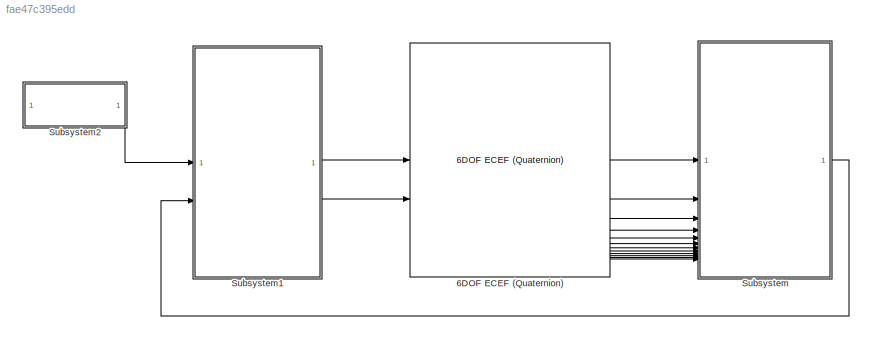
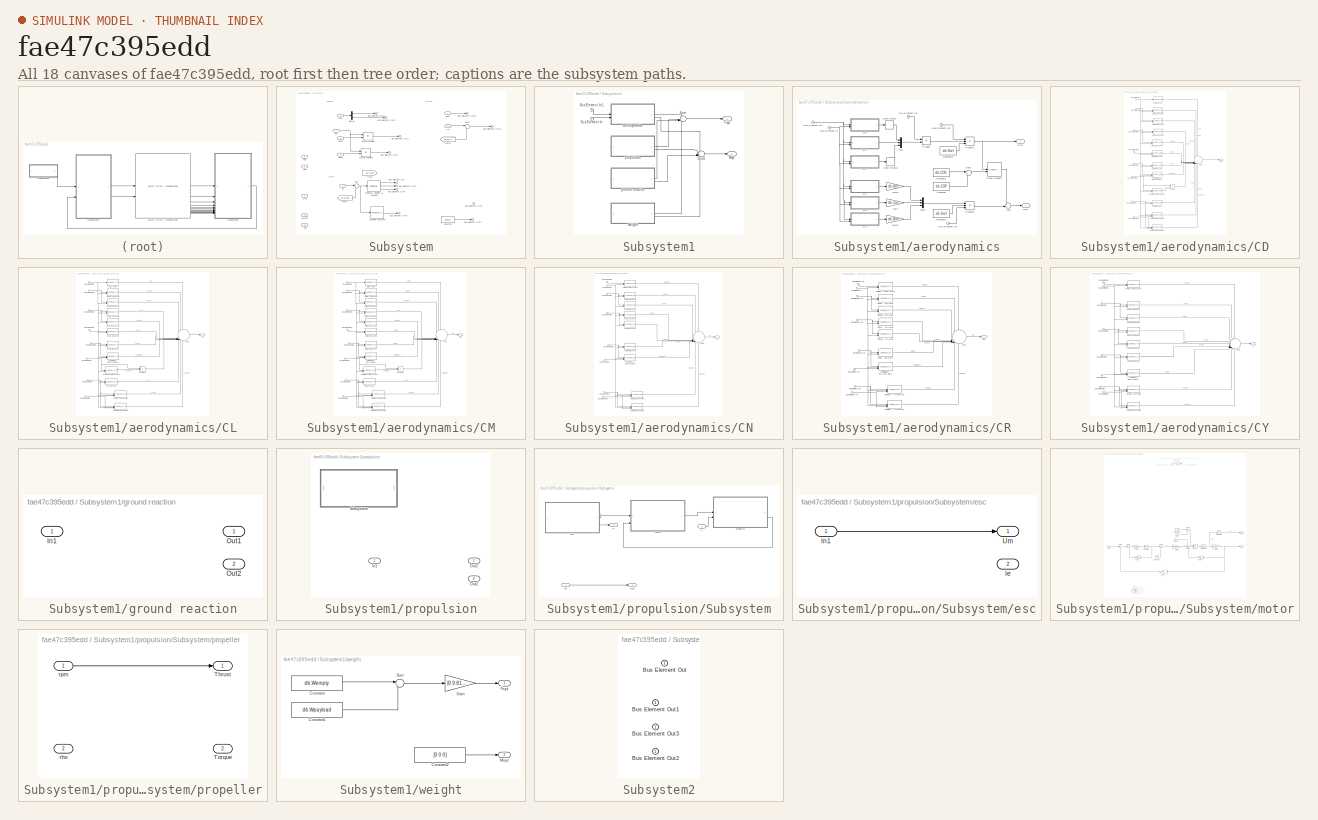
[diagram: thumbnail index - all 18 canvases of the model, root first then tree order]
MODEL slx_fae47c395edd
KIND model
CONFIG AbsTol = auto
CONFIG EnableMultiTasking = off
CONFIG FixedStep = auto
CONFIG InitFcn = L400_init
CONFIG MaxStep = auto
CONFIG MinStep = auto
CONFIG RelTol = 1e-3
CONFIG SampleTimeConstraint = Unconstrained
CONFIG SolverName = VariableStepAuto
CONFIG StartTime = 0.0
CONFIG StopTime = 10.0
BLOCK [Reference] 6DOF ECEF (Quaternion)  REF=aerolib6dof2/6DOF ECEF (Quaternion)
  SourceBlock = aerolib6dof2/6DOF ECEF (Quaternion)
  SourceType = 6DOF EoM (ECEF)
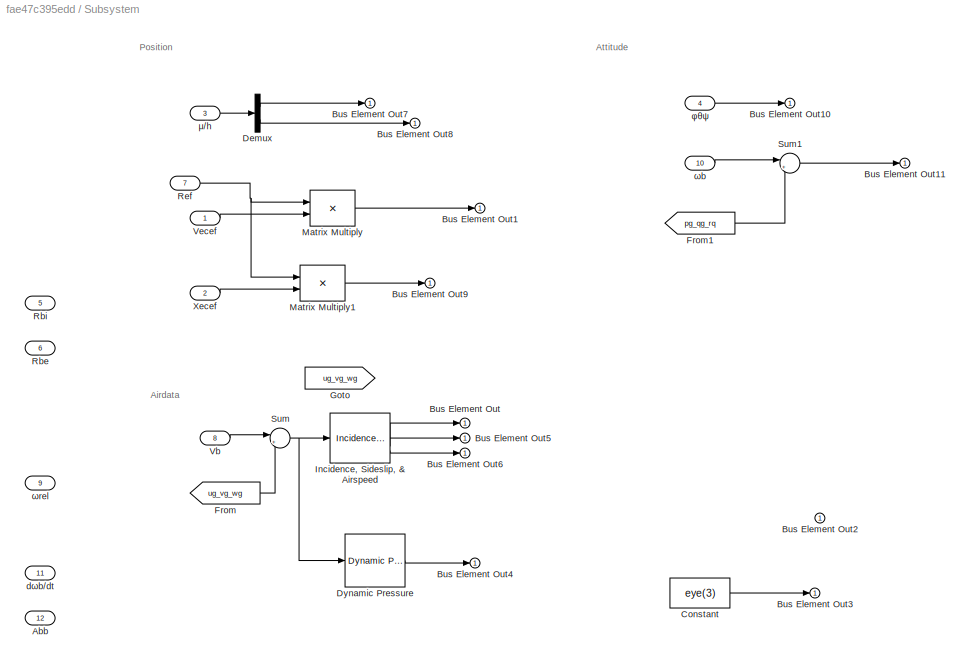
BLOCK [SubSystem] Subsystem
BLOCK [Inport] Subsystem/Abb
  Port = 12
BLOCK [Outport] Subsystem/Bus Element Out
BLOCK [Outport] Subsystem/Bus Element Out1
BLOCK [Outport] Subsystem/Bus Element Out10
BLOCK [Outport] Subsystem/Bus Element Out11
BLOCK [Outport] Subsystem/Bus Element Out2
BLOCK [Outport] Subsystem/Bus Element Out3
BLOCK [Outport] Subsystem/Bus Element Out4
BLOCK [Outport] Subsystem/Bus Element Out5
BLOCK [Outport] Subsystem/Bus Element Out6
BLOCK [Outport] Subsystem/Bus Element Out7
BLOCK [Outport] Subsystem/Bus Element Out8
BLOCK [Outport] Subsystem/Bus Element Out9
BLOCK [Constant] Subsystem/Constant
  Value = eye(3)
BLOCK [Demux] Subsystem/Demux
  Outputs = [2 1]
BLOCK [Reference] Subsystem/Dynamic Pressure  REF=aerolibasang/Dynamic Pressure
  SourceBlock = aerolibasang/Dynamic Pressure
  SourceType = Dynamic Pressure
BLOCK [From] Subsystem/From
  GotoTag = ug_vg_wg
BLOCK [From] Subsystem/From1
  GotoTag = pg_qg_rq
BLOCK [Goto] Subsystem/Goto
  GotoTag = ug_vg_wg
BLOCK [Reference] Subsystem/Incidence, Sideslip, & Airspeed  REF=aerolibasang/Incidence, Sideslip,
& Airspeed
  SourceBlock = aerolibasang/Incidence, Sideslip,\n& Airspeed
  SourceType = Incidence,Sideslip,&Airspeed
BLOCK [Product] Subsystem/Matrix Multiply
  Multiplication = Matrix(*)
BLOCK [Product] Subsystem/Matrix Multiply1
  Multiplication = Matrix(*)
BLOCK [Inport] Subsystem/Rbe
  Port = 6
BLOCK [Inport] Subsystem/Rbi
  Port = 5
BLOCK [Inport] Subsystem/Ref
  Port = 7
BLOCK [Sum] Subsystem/Sum
  Inputs = |+-
BLOCK [Sum] Subsystem/Sum1
  Inputs = |++
BLOCK [Inport] Subsystem/Vb
  Port = 8
BLOCK [Inport] Subsystem/Vecef
BLOCK [Inport] Subsystem/Xecef
  Port = 2
BLOCK [Inport] Subsystem/dωb//dt
  Port = 11
BLOCK [Inport] Subsystem/μ//h
  Port = 3
BLOCK [Inport] Subsystem/φθψ
  Port = 4
BLOCK [Inport] Subsystem/ωb
  Port = 10
BLOCK [Inport] Subsystem/ωrel
  Port = 9
BLOCK [SubSystem] Subsystem1
BLOCK [Inport] Subsystem1/Bus Element In
  Port = 2
BLOCK [Inport] Subsystem1/Bus Element In1
BLOCK [Outport] Subsystem1/Fxyz
BLOCK [Outport] Subsystem1/Mxyz
  Port = 2
BLOCK [Sum] Subsystem1/Sum
  Inputs = 4
BLOCK [Sum] Subsystem1/Sum1
  Inputs = 4
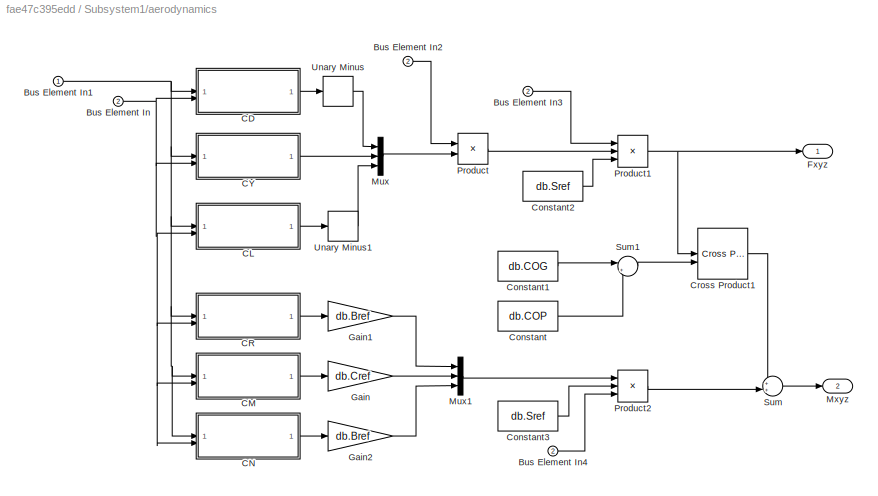
BLOCK [SubSystem] Subsystem1/aerodynamics
BLOCK [Inport] Subsystem1/aerodynamics/Bus Element In
  Port = 2
BLOCK [Inport] Subsystem1/aerodynamics/Bus Element In1
BLOCK [Inport] Subsystem1/aerodynamics/Bus Element In2
  Port = 2
BLOCK [Inport] Subsystem1/aerodynamics/Bus Element In3
  Port = 2
BLOCK [Inport] Subsystem1/aerodynamics/Bus Element In4
  Port = 2
BLOCK [SubSystem] Subsystem1/aerodynamics/CD
BLOCK [Inport] Subsystem1/aerodynamics/CD/Bus Element In
BLOCK [Inport] Subsystem1/aerodynamics/CD/Bus Element In1
  Port = 2
BLOCK [Inport] Subsystem1/aerodynamics/CD/Bus Element In2
BLOCK [Inport] Subsystem1/aerodynamics/CD/Bus Element In3
BLOCK [Inport] Subsystem1/aerodynamics/CD/Bus Element In4
BLOCK [Inport] Subsystem1/aerodynamics/CD/Bus Element In5
  Port = 2
BLOCK [Inport] Subsystem1/aerodynamics/CD/Bus Element In6
  Port = 2
BLOCK [Inport] Subsystem1/aerodynamics/CD/Bus Element In7
BLOCK [Outport] Subsystem1/aerodynamics/CD/CD
BLOCK [Lookup_n-D] Subsystem1/aerodynamics/CD/CDB - ALPHA
  BreakpointsForDimension1 = db.VALPHA
  InputPortMap = u0
  InternalRulePriority = Speed
  NumberOfTableDimensions = 1
  RndMeth = Simplest
  Table = db.CDB
BLOCK [Lookup_n-D] Subsystem1/aerodynamics/CD/CDDAL - DA,ALPHA
  BreakpointsForDimension1 = db.VDA
  BreakpointsForDimension2 = db.VALPHA
  InputPortMap = u0,u1
  InternalRulePriority = Speed
  RndMeth = Simplest
  Table = db.CDDAL
BLOCK [Lookup_n-D] Subsystem1/aerodynamics/CD/CDDAR - DA,ALPHA
  BreakpointsForDimension1 = db.VDA
  BreakpointsForDimension2 = db.VALPHA
  InputPortMap = u0,u1
  InternalRulePriority = Speed
  RndMeth = Simplest
  Table = db.CDDAR
BLOCK [Lookup_n-D] Subsystem1/aerodynamics/CD/CDDE - DE,ALPHA
  BreakpointsForDimension1 = db.VDE
  BreakpointsForDimension2 = db.VALPHA
  InputPortMap = u0,u1
  InternalRulePriority = Speed
  RndMeth = Simplest
  Table = db.CDDE
BLOCK [Lookup_n-D] Subsystem1/aerodynamics/CD/CDDFL - DF,ALPHA
  BreakpointsForDimension1 = db.VDF
  BreakpointsForDimension2 = db.VALPHA
  InputPortMap = u0,u1
  InternalRulePriority = Speed
  RndMeth = Simplest
  Table = db.CDDFL
BLOCK [Lookup_n-D] Subsystem1/aerodynamics/CD/CDDFR - DF,ALPHA
  BreakpointsForDimension1 = db.VDF
  BreakpointsForDimension2 = db.VALPHA
  InputPortMap = u0,u1
  InternalRulePriority = Speed
  RndMeth = Simplest
  Table = db.CDDFR
BLOCK [Lookup_n-D] Subsystem1/aerodynamics/CD/CDDR - DR,ALPHA
  BreakpointsForDimension1 = db.VDR
  BreakpointsForDimension2 = db.VALPHA
  InputPortMap = u0,u1
  InternalRulePriority = Speed
  RndMeth = Simplest
  Table = db.CDDR
BLOCK [Lookup_n-D] Subsystem1/aerodynamics/CD/CDDRBETA - DR,ALPHA,BETA
  BreakpointsForDimension1 = db.VDR
  BreakpointsForDimension2 = db.VALPHA
  BreakpointsForDimension3 = db.VBETA
  InputPortMap = u0,u1,u2
  InternalRulePriority = Speed
  NumberOfTableDimensions = 3
  RndMeth = Simplest
  Table = db.CDDRBETA
BLOCK [Lookup_n-D] Subsystem1/aerodynamics/CD/CDH - H,ALPHA
  BreakpointsForDimension1 = db.VH
  BreakpointsForDimension2 = db.VALPHA
  InputPortMap = u0,u1
  InternalRulePriority = Speed
  RndMeth = Simplest
  Table = db.CDH
BLOCK [Lookup_n-D] Subsystem1/aerodynamics/CD/CDHDFL - H,ALPHA,DF
  BreakpointsForDimension1 = db.VH
  BreakpointsForDimension2 = db.VALPHA
  BreakpointsForDimension3 = db.VDF
  InputPortMap = u0,u1,u2
  InternalRulePriority = Speed
  NumberOfTableDimensions = 3
  RndMeth = Simplest
  Table = db.CDHDFL
BLOCK [Lookup_n-D] Subsystem1/aerodynamics/CD/CDHDFR - H,ALPHA,DF
  BreakpointsForDimension1 = db.VH
  BreakpointsForDimension2 = db.VALPHA
  BreakpointsForDimension3 = db.VDF
  InputPortMap = u0,u1,u2
  InternalRulePriority = Speed
  NumberOfTableDimensions = 3
  RndMeth = Simplest
  Table = db.CDHDFR
BLOCK [Lookup_n-D] Subsystem1/aerodynamics/CD/DCDBETA - BETA,ALPHA
  BreakpointsForDimension1 = db.VBETA
  BreakpointsForDimension2 = db.VALPHA
  InputPortMap = u0,u1
  InternalRulePriority = Speed
  RndMeth = Simplest
  Table = db.DCDBETA
BLOCK [Product] Subsystem1/aerodynamics/CD/Product
BLOCK [Sum] Subsystem1/aerodynamics/CD/Sum
  Inputs = 12
BLOCK [SubSystem] Subsystem1/aerodynamics/CL
BLOCK [Inport] Subsystem1/aerodynamics/CL/BusElementIn
  Port = 2
BLOCK [Inport] Subsystem1/aerodynamics/CL/BusElementIn1
  Port = 2
BLOCK [Inport] Subsystem1/aerodynamics/CL/BusElementIn2
BLOCK [Inport] Subsystem1/aerodynamics/CL/BusElementIn3
BLOCK [Inport] Subsystem1/aerodynamics/CL/BusElementIn4
BLOCK [Inport] Subsystem1/aerodynamics/CL/BusElementIn5
BLOCK [Inport] Subsystem1/aerodynamics/CL/BusElementIn6
  Port = 2
BLOCK [Inport] Subsystem1/aerodynamics/CL/BusElementIn7
BLOCK [Outport] Subsystem1/aerodynamics/CL/CL
BLOCK [Lookup_n-D] Subsystem1/aerodynamics/CL/CLB - ALPHA
  BreakpointsForDimension1 = db.VALPHA
  InputPortMap = u0
  InternalRulePriority = Speed
  NumberOfTableDimensions = 1
  RndMeth = Simplest
  Table = db.CLB
BLOCK [Lookup_n-D] Subsystem1/aerodynamics/CL/CLDAL - DA,ALPHA
  BreakpointsForDimension1 = db.VDA
  BreakpointsForDimension2 = db.VALPHA
  InputPortMap = u0,u1
  InternalRulePriority = Speed
  RndMeth = Simplest
  Table = db.CLDAL
BLOCK [Lookup_n-D] Subsystem1/aerodynamics/CL/CLDAR - DA,ALPHA
  BreakpointsForDimension1 = db.VDA
  BreakpointsForDimension2 = db.VALPHA
  InputPortMap = u0,u1
  InternalRulePriority = Speed
  RndMeth = Simplest
  Table = db.CLDAR
BLOCK [Lookup_n-D] Subsystem1/aerodynamics/CL/CLDE - DE,ALPHA
  BreakpointsForDimension1 = db.VDE
  BreakpointsForDimension2 = db.VALPHA
  InputPortMap = u0,u1
  InternalRulePriority = Speed
  RndMeth = Simplest
  Table = db.CLDE
BLOCK [Lookup_n-D] Subsystem1/aerodynamics/CL/CLDFL - DF,ALPHA
  BreakpointsForDimension1 = db.VDF
  BreakpointsForDimension2 = db.VALPHA
  InputPortMap = u0,u1
  InternalRulePriority = Speed
  RndMeth = Simplest
  Table = db.CLDFL
BLOCK [Lookup_n-D] Subsystem1/aerodynamics/CL/CLDFR - DF,ALPHA
  BreakpointsForDimension1 = db.VDF
  BreakpointsForDimension2 = db.VALPHA
  InputPortMap = u0,u1
  InternalRulePriority = Speed
  RndMeth = Simplest
  Table = db.CLDFR
BLOCK [Lookup_n-D] Subsystem1/aerodynamics/CL/CLDR - DR,ALPHA
  BreakpointsForDimension1 = db.VDR
  BreakpointsForDimension2 = db.VALPHA
  InputPortMap = u0,u1
  InternalRulePriority = Speed
  RndMeth = Simplest
  Table = db.CLDR
BLOCK [Lookup_n-D] Subsystem1/aerodynamics/CL/CLDRBETA - DR,ALPHA,BETA
  BreakpointsForDimension1 = db.VDR
  BreakpointsForDimension2 = db.VALPHA
  BreakpointsForDimension3 = db.VBETA
  InputPortMap = u0,u1,u2
  InternalRulePriority = Speed
  NumberOfTableDimensions = 3
  RndMeth = Simplest
  Table = db.CLDRBETA
BLOCK [Lookup_n-D] Subsystem1/aerodynamics/CL/CLH - H,ALPHA
  BreakpointsForDimension1 = db.VH
  BreakpointsForDimension2 = db.VALPHA
  BreakpointsForDimension3 = db.VBETA
  InputPortMap = u0,u1
  InternalRulePriority = Speed
  RndMeth = Simplest
  Table = db.CLH
BLOCK [Lookup_n-D] Subsystem1/aerodynamics/CL/CLHDFL - H,ALPHA,DF
  BreakpointsForDimension1 = db.VH
  BreakpointsForDimension2 = db.VALPHA
  BreakpointsForDimension3 = db.VDF
  InputPortMap = u0,u1,u2
  InternalRulePriority = Speed
  NumberOfTableDimensions = 3
  RndMeth = Simplest
  Table = db.CLHDFL
BLOCK [Lookup_n-D] Subsystem1/aerodynamics/CL/CLHDFR - H,ALPHA,DF
  BreakpointsForDimension1 = db.VH
  BreakpointsForDimension2 = db.VALPHA
  BreakpointsForDimension3 = db.VDF
  InputPortMap = u0,u1,u2
  InternalRulePriority = Speed
  NumberOfTableDimensions = 3
  RndMeth = Simplest
  Table = db.CLHDFL
BLOCK [Lookup_n-D] Subsystem1/aerodynamics/CL/DCLBETA - BETA,ALPHA
  BreakpointsForDimension1 = db.VBETA
  BreakpointsForDimension2 = db.VALPHA
  BreakpointsForDimension3 = db.VBETA
  InputPortMap = u0,u1
  InternalRulePriority = Speed
  RndMeth = Simplest
  Table = db.DCLBETA
BLOCK [Product] Subsystem1/aerodynamics/CL/Product
BLOCK [Sum] Subsystem1/aerodynamics/CL/Sum
  Inputs = 12
BLOCK [SubSystem] Subsystem1/aerodynamics/CM
BLOCK [Inport] Subsystem1/aerodynamics/CM/BusElementIn
  Port = 2
BLOCK [Inport] Subsystem1/aerodynamics/CM/BusElementIn1
  Port = 2
BLOCK [Inport] Subsystem1/aerodynamics/CM/BusElementIn2
BLOCK [Inport] Subsystem1/aerodynamics/CM/BusElementIn3
BLOCK [Inport] Subsystem1/aerodynamics/CM/BusElementIn4
BLOCK [Inport] Subsystem1/aerodynamics/CM/BusElementIn5
BLOCK [Inport] Subsystem1/aerodynamics/CM/BusElementIn6
  Port = 2
BLOCK [Inport] Subsystem1/aerodynamics/CM/BusElementIn7
BLOCK [Outport] Subsystem1/aerodynamics/CM/CM
BLOCK [Lookup_n-D] Subsystem1/aerodynamics/CM/CMB - ALPHA
  BreakpointsForDimension1 = db.VALPHA
  InputPortMap = u0
  InternalRulePriority = Speed
  NumberOfTableDimensions = 1
  RndMeth = Simplest
  Table = db.CMB
BLOCK [Lookup_n-D] Subsystem1/aerodynamics/CM/CMDAL - DA,ALPHA
  BreakpointsForDimension1 = db.VDA
  BreakpointsForDimension2 = db.VALPHA
  InputPortMap = u0,u1
  InternalRulePriority = Speed
  RndMeth = Simplest
  Table = db.CMDAL
BLOCK [Lookup_n-D] Subsystem1/aerodynamics/CM/CMDAR - DA,ALPHA
  BreakpointsForDimension1 = db.VDA
  BreakpointsForDimension2 = db.VALPHA
  InputPortMap = u0,u1
  InternalRulePriority = Speed
  RndMeth = Simplest
  Table = db.CMDAR
BLOCK [Lookup_n-D] Subsystem1/aerodynamics/CM/CMDE - DE,ALPHA
  BreakpointsForDimension1 = db.VDE
  BreakpointsForDimension2 = db.VALPHA
  InputPortMap = u0,u1
  InternalRulePriority = Speed
  RndMeth = Simplest
  Table = db.CMDE
BLOCK [Lookup_n-D] Subsystem1/aerodynamics/CM/CMDFL - DF,ALPHA
  BreakpointsForDimension1 = db.VDF
  BreakpointsForDimension2 = db.VALPHA
  InputPortMap = u0,u1
  InternalRulePriority = Speed
  RndMeth = Simplest
  Table = db.CMDFL
BLOCK [Lookup_n-D] Subsystem1/aerodynamics/CM/CMDFR - DF,ALPHA
  BreakpointsForDimension1 = db.VDF
  BreakpointsForDimension2 = db.VALPHA
  InputPortMap = u0,u1
  InternalRulePriority = Speed
  RndMeth = Simplest
  Table = db.CMDFR
BLOCK [Lookup_n-D] Subsystem1/aerodynamics/CM/CMDR - DR,ALPHA
  BreakpointsForDimension1 = db.VDR
  BreakpointsForDimension2 = db.VALPHA
  InputPortMap = u0,u1
  InternalRulePriority = Speed
  RndMeth = Simplest
  Table = db.CMDR
BLOCK [Lookup_n-D] Subsystem1/aerodynamics/CM/CMDRBETA - DR,ALPHA,BETA
  BreakpointsForDimension1 = db.VDR
  BreakpointsForDimension2 = db.VALPHA
  BreakpointsForDimension3 = db.VBETA
  InputPortMap = u0,u1,u2
  InternalRulePriority = Speed
  NumberOfTableDimensions = 3
  RndMeth = Simplest
  Table = db.CMDRBETA
BLOCK [Lookup_n-D] Subsystem1/aerodynamics/CM/CMH - H,ALPHA
  BreakpointsForDimension1 = db.VH
  BreakpointsForDimension2 = db.VALPHA
  BreakpointsForDimension3 = db.VBETA
  InputPortMap = u0,u1
  InternalRulePriority = Speed
  RndMeth = Simplest
  Table = db.CMH
BLOCK [Lookup_n-D] Subsystem1/aerodynamics/CM/CMHDFL - H,ALPHA,DF
  BreakpointsForDimension1 = db.VH
  BreakpointsForDimension2 = db.VALPHA
  BreakpointsForDimension3 = db.VDF
  InputPortMap = u0,u1,u2
  InternalRulePriority = Speed
  NumberOfTableDimensions = 3
  RndMeth = Simplest
  Table = db.CMHDFL
BLOCK [Lookup_n-D] Subsystem1/aerodynamics/CM/CMHDFR - H,ALPHA,DF
  BreakpointsForDimension1 = db.VH
  BreakpointsForDimension2 = db.VALPHA
  BreakpointsForDimension3 = db.VDF
  InputPortMap = u0,u1,u2
  InternalRulePriority = Speed
  NumberOfTableDimensions = 3
  RndMeth = Simplest
  Table = db.CMHDFR
BLOCK [Lookup_n-D] Subsystem1/aerodynamics/CM/DCMBETA - BETA,ALPHA
  BreakpointsForDimension1 = db.VBETA
  BreakpointsForDimension2 = db.VALPHA
  BreakpointsForDimension3 = db.VBETA
  InputPortMap = u0,u1
  InternalRulePriority = Speed
  RndMeth = Simplest
  Table = db.DCMBETA
BLOCK [Product] Subsystem1/aerodynamics/CM/Product
BLOCK [Sum] Subsystem1/aerodynamics/CM/Sum
  Inputs = 12
BLOCK [SubSystem] Subsystem1/aerodynamics/CN
BLOCK [Inport] Subsystem1/aerodynamics/CN/BusElementIn
  Port = 2
BLOCK [Inport] Subsystem1/aerodynamics/CN/BusElementIn1
  Port = 2
BLOCK [Inport] Subsystem1/aerodynamics/CN/BusElementIn2
BLOCK [Inport] Subsystem1/aerodynamics/CN/BusElementIn3
BLOCK [Inport] Subsystem1/aerodynamics/CN/BusElementIn5
BLOCK [Inport] Subsystem1/aerodynamics/CN/BusElementIn6
  Port = 2
BLOCK [Inport] Subsystem1/aerodynamics/CN/BusElementIn7
BLOCK [Inport] Subsystem1/aerodynamics/CN/BusElementIn8
  Port = 2
BLOCK [Outport] Subsystem1/aerodynamics/CN/CN
BLOCK [Lookup_n-D] Subsystem1/aerodynamics/CN/CNBETA - BETA,ALPHA
  BreakpointsForDimension1 = db.VBETA
  BreakpointsForDimension2 = db.VALPHA
  InputPortMap = u0,u1
  InternalRulePriority = Speed
  RndMeth = Simplest
  Table = db.CNBETA
BLOCK [Lookup_n-D] Subsystem1/aerodynamics/CN/CNDAL - DA,ALPHA
  BreakpointsForDimension1 = db.VDA
  BreakpointsForDimension2 = db.VALPHA
  InputPortMap = u0,u1
  InternalRulePriority = Speed
  RndMeth = Simplest
  Table = db.CNDAL
BLOCK [Lookup_n-D] Subsystem1/aerodynamics/CN/CNDAR - DA,ALPHA
  BreakpointsForDimension1 = db.VDA
  BreakpointsForDimension2 = db.VALPHA
  InputPortMap = u0,u1
  InternalRulePriority = Speed
  RndMeth = Simplest
  Table = db.CNDAR
BLOCK [Lookup_n-D] Subsystem1/aerodynamics/CN/CNDFL - DF,ALPHA
  BreakpointsForDimension1 = db.VDF
  BreakpointsForDimension2 = db.VALPHA
  InputPortMap = u0,u1
  InternalRulePriority = Speed
  RndMeth = Simplest
  Table = db.CNDFL
BLOCK [Lookup_n-D] Subsystem1/aerodynamics/CN/CNDFR - DF,ALPHA
  BreakpointsForDimension1 = db.VDF
  BreakpointsForDimension2 = db.VALPHA
  InputPortMap = u0,u1
  InternalRulePriority = Speed
  RndMeth = Simplest
  Table = db.CNDFR
BLOCK [Lookup_n-D] Subsystem1/aerodynamics/CN/CNDR - DR,ALPHA
  BreakpointsForDimension1 = db.VDR
  BreakpointsForDimension2 = db.VALPHA
  InputPortMap = u0,u1
  InternalRulePriority = Speed
  RndMeth = Simplest
  Table = db.CNDR
BLOCK [Lookup_n-D] Subsystem1/aerodynamics/CN/CNDRBETA - DR,ALPHA,BETA
  BreakpointsForDimension1 = db.VDR
  BreakpointsForDimension2 = db.VALPHA
  BreakpointsForDimension3 = db.VBETA
  InputPortMap = u0,u1,u2
  InternalRulePriority = Speed
  NumberOfTableDimensions = 3
  RndMeth = Simplest
  Table = db.CNDRBETA
BLOCK [Lookup_n-D] Subsystem1/aerodynamics/CN/CNHDFL - H,ALPHA,DF
  BreakpointsForDimension1 = db.VH
  BreakpointsForDimension2 = db.VALPHA
  BreakpointsForDimension3 = db.VDF
  InputPortMap = u0,u1,u2
  InternalRulePriority = Speed
  NumberOfTableDimensions = 3
  RndMeth = Simplest
  Table = db.CNHDFL
BLOCK [Lookup_n-D] Subsystem1/aerodynamics/CN/CNHDFR - H,ALPHA,DF
  BreakpointsForDimension1 = db.VH
  BreakpointsForDimension2 = db.VALPHA
  BreakpointsForDimension3 = db.VDF
  InputPortMap = u0,u1,u2
  InternalRulePriority = Speed
  NumberOfTableDimensions = 3
  RndMeth = Simplest
  Table = db.CNHDFR
BLOCK [Sum] Subsystem1/aerodynamics/CN/Sum
  Inputs = 9
BLOCK [SubSystem] Subsystem1/aerodynamics/CR
BLOCK [Inport] Subsystem1/aerodynamics/CR/BusElementIn
  Port = 2
BLOCK [Inport] Subsystem1/aerodynamics/CR/BusElementIn1
  Port = 2
BLOCK [Inport] Subsystem1/aerodynamics/CR/BusElementIn2
BLOCK [Inport] Subsystem1/aerodynamics/CR/BusElementIn3
BLOCK [Inport] Subsystem1/aerodynamics/CR/BusElementIn5
BLOCK [Inport] Subsystem1/aerodynamics/CR/BusElementIn6
  Port = 2
BLOCK [Inport] Subsystem1/aerodynamics/CR/BusElementIn7
BLOCK [Inport] Subsystem1/aerodynamics/CR/BusElementIn8
  Port = 2
BLOCK [Outport] Subsystem1/aerodynamics/CR/CR
BLOCK [Lookup_n-D] Subsystem1/aerodynamics/CR/CRBETA - BETA,ALPHA
  BreakpointsForDimension1 = db.VBETA
  BreakpointsForDimension2 = db.VALPHA
  InputPortMap = u0,u1
  InternalRulePriority = Speed
  RndMeth = Simplest
  Table = db.CRBETA
BLOCK [Lookup_n-D] Subsystem1/aerodynamics/CR/CRDAL - DA,ALPHA
  BreakpointsForDimension1 = db.VDA
  BreakpointsForDimension2 = db.VALPHA
  InputPortMap = u0,u1
  InternalRulePriority = Speed
  RndMeth = Simplest
  Table = db.CRDAL
BLOCK [Lookup_n-D] Subsystem1/aerodynamics/CR/CRDAR - DA,ALPHA
  BreakpointsForDimension1 = db.VDA
  BreakpointsForDimension2 = db.VALPHA
  InputPortMap = u0,u1
  InternalRulePriority = Speed
  RndMeth = Simplest
  Table = db.CRDAR
BLOCK [Lookup_n-D] Subsystem1/aerodynamics/CR/CRDFL - DF,ALPHA
  BreakpointsForDimension1 = db.VDF
  BreakpointsForDimension2 = db.VALPHA
  InputPortMap = u0,u1
  InternalRulePriority = Speed
  RndMeth = Simplest
  Table = db.CRDFL
BLOCK [Lookup_n-D] Subsystem1/aerodynamics/CR/CRDFR - DF,ALPHA
  BreakpointsForDimension1 = db.VDF
  BreakpointsForDimension2 = db.VALPHA
  InputPortMap = u0,u1
  InternalRulePriority = Speed
  RndMeth = Simplest
  Table = db.CRDFR
BLOCK [Lookup_n-D] Subsystem1/aerodynamics/CR/CRDR - DR,ALPHA
  BreakpointsForDimension1 = db.VDR
  BreakpointsForDimension2 = db.VALPHA
  InputPortMap = u0,u1
  InternalRulePriority = Speed
  RndMeth = Simplest
  Table = db.CRDR
BLOCK [Lookup_n-D] Subsystem1/aerodynamics/CR/CRDRBETA - DR,ALPHA,BETA
  BreakpointsForDimension1 = db.VDR
  BreakpointsForDimension2 = db.VALPHA
  BreakpointsForDimension3 = db.VBETA
  InputPortMap = u0,u1,u2
  InternalRulePriority = Speed
  NumberOfTableDimensions = 3
  RndMeth = Simplest
  Table = db.CRDRBETA
BLOCK [Lookup_n-D] Subsystem1/aerodynamics/CR/CRHDFL - H,ALPHA,DF
  BreakpointsForDimension1 = db.VH
  BreakpointsForDimension2 = db.VALPHA
  BreakpointsForDimension3 = db.VDF
  InputPortMap = u0,u1,u2
  InternalRulePriority = Speed
  NumberOfTableDimensions = 3
  RndMeth = Simplest
  Table = db.CRHDFL
BLOCK [Lookup_n-D] Subsystem1/aerodynamics/CR/CRHDFR - H,ALPHA,DF
  BreakpointsForDimension1 = db.VH
  BreakpointsForDimension2 = db.VALPHA
  BreakpointsForDimension3 = db.VDF
  InputPortMap = u0,u1,u2
  InternalRulePriority = Speed
  NumberOfTableDimensions = 3
  RndMeth = Simplest
  Table = db.CRHDFR
BLOCK [Sum] Subsystem1/aerodynamics/CR/Sum
  Inputs = 9
BLOCK [SubSystem] Subsystem1/aerodynamics/CY
BLOCK [Inport] Subsystem1/aerodynamics/CY/Bus Element In
BLOCK [Inport] Subsystem1/aerodynamics/CY/Bus Element In1
  Port = 2
BLOCK [Inport] Subsystem1/aerodynamics/CY/Bus Element In2
  Port = 2
BLOCK [Inport] Subsystem1/aerodynamics/CY/Bus Element In3
BLOCK [Inport] Subsystem1/aerodynamics/CY/Bus Element In4
BLOCK [Inport] Subsystem1/aerodynamics/CY/Bus Element In5
  Port = 2
BLOCK [Inport] Subsystem1/aerodynamics/CY/Bus Element In6
  Port = 2
BLOCK [Inport] Subsystem1/aerodynamics/CY/Bus Element In7
BLOCK [Outport] Subsystem1/aerodynamics/CY/CY
BLOCK [Lookup_n-D] Subsystem1/aerodynamics/CY/CYBETA - BETA,ALPHA
  BreakpointsForDimension1 = db.VBETA
  BreakpointsForDimension2 = db.VALPHA
  InputPortMap = u0,u1
  InternalRulePriority = Speed
  RndMeth = Simplest
  Table = db.CYBETA
BLOCK [Lookup_n-D] Subsystem1/aerodynamics/CY/CYDAL - DA,ALPHA
  BreakpointsForDimension1 = db.VDA
  BreakpointsForDimension2 = db.VALPHA
  InputPortMap = u0,u1
  InternalRulePriority = Speed
  RndMeth = Simplest
  Table = db.CYDAL
BLOCK [Lookup_n-D] Subsystem1/aerodynamics/CY/CYDAR - DA,ALPHA
  BreakpointsForDimension1 = db.VDA
  BreakpointsForDimension2 = db.VALPHA
  InputPortMap = u0,u1
  InternalRulePriority = Speed
  RndMeth = Simplest
  Table = db.CYDAR
BLOCK [Lookup_n-D] Subsystem1/aerodynamics/CY/CYDFL - DF,ALPHA
  BreakpointsForDimension1 = db.VDF
  BreakpointsForDimension2 = db.VALPHA
  InputPortMap = u0,u1
  InternalRulePriority = Speed
  RndMeth = Simplest
  Table = db.CYDFL
BLOCK [Lookup_n-D] Subsystem1/aerodynamics/CY/CYDFR - DF,ALPHA
  BreakpointsForDimension1 = db.VDF
  BreakpointsForDimension2 = db.VALPHA
  InputPortMap = u0,u1
  InternalRulePriority = Speed
  RndMeth = Simplest
  Table = db.CYDFR
BLOCK [Lookup_n-D] Subsystem1/aerodynamics/CY/CYDR - DR,ALPHA
  BreakpointsForDimension1 = db.VDR
  BreakpointsForDimension2 = db.VALPHA
  InputPortMap = u0,u1
  InternalRulePriority = Speed
  RndMeth = Simplest
  Table = db.CYDR
BLOCK [Lookup_n-D] Subsystem1/aerodynamics/CY/CYDRBETA - DR,ALPHA,BETA
  BreakpointsForDimension1 = db.VDR
  BreakpointsForDimension2 = db.VALPHA
  BreakpointsForDimension3 = db.VBETA
  InputPortMap = u0,u1,u2
  InternalRulePriority = Speed
  NumberOfTableDimensions = 3
  RndMeth = Simplest
  Table = db.CYDRBETA
BLOCK [Lookup_n-D] Subsystem1/aerodynamics/CY/CYHDFL - H,ALPHA,DF
  BreakpointsForDimension1 = db.VH
  BreakpointsForDimension2 = db.VALPHA
  BreakpointsForDimension3 = db.VDF
  InputPortMap = u0,u1,u2
  InternalRulePriority = Speed
  NumberOfTableDimensions = 3
  RndMeth = Simplest
  Table = db.CYHDFL
BLOCK [Lookup_n-D] Subsystem1/aerodynamics/CY/CYHDFR - H,ALPHA,DF
  BreakpointsForDimension1 = db.VH
  BreakpointsForDimension2 = db.VALPHA
  BreakpointsForDimension3 = db.VDF
  InputPortMap = u0,u1,u2
  InternalRulePriority = Speed
  NumberOfTableDimensions = 3
  RndMeth = Simplest
  Table = db.CYHDFR
BLOCK [Sum] Subsystem1/aerodynamics/CY/Sum
  Inputs = 9
BLOCK [Constant] Subsystem1/aerodynamics/Constant
  Value = db.COP
BLOCK [Constant] Subsystem1/aerodynamics/Constant1
  Value = db.COG
BLOCK [Constant] Subsystem1/aerodynamics/Constant2
  Value = db.Sref
BLOCK [Constant] Subsystem1/aerodynamics/Constant3
  Value = db.Sref
BLOCK [Reference] Subsystem1/aerodynamics/Cross Product1  REF=matrix_library/Cross Product
  LibrarySourceBlock = simulink/Matrix\nOperations/Cross Product
  SourceBlock = matrix_library/Cross Product
  SourceType = CrossProduct
BLOCK [Outport] Subsystem1/aerodynamics/Fxyz
BLOCK [Gain] Subsystem1/aerodynamics/Gain
  Gain = db.Cref
BLOCK [Gain] Subsystem1/aerodynamics/Gain1
  Gain = db.Bref
BLOCK [Gain] Subsystem1/aerodynamics/Gain2
  Gain = db.Bref
BLOCK [Mux] Subsystem1/aerodynamics/Mux
  DisplayOption = bar
  Inputs = 3
BLOCK [Mux] Subsystem1/aerodynamics/Mux1
  DisplayOption = bar
  Inputs = 3
BLOCK [Outport] Subsystem1/aerodynamics/Mxyz
  Port = 2
BLOCK [Product] Subsystem1/aerodynamics/Product
  Multiplication = Matrix(*)
BLOCK [Product] Subsystem1/aerodynamics/Product1
  Inputs = 3
BLOCK [Product] Subsystem1/aerodynamics/Product2
  Inputs = 3
BLOCK [Sum] Subsystem1/aerodynamics/Sum
  Inputs = ++|
BLOCK [Sum] Subsystem1/aerodynamics/Sum1
  Inputs = |+-
BLOCK [UnaryMinus] Subsystem1/aerodynamics/Unary Minus
BLOCK [UnaryMinus] Subsystem1/aerodynamics/Unary Minus1
BLOCK [SubSystem] Subsystem1/ground reaction
BLOCK [Inport] Subsystem1/ground reaction/In1
BLOCK [Outport] Subsystem1/ground reaction/Out1
BLOCK [Outport] Subsystem1/ground reaction/Out2
  Port = 2
BLOCK [SubSystem] Subsystem1/propulsion
BLOCK [Inport] Subsystem1/propulsion/In1
BLOCK [Outport] Subsystem1/propulsion/Out1
BLOCK [Outport] Subsystem1/propulsion/Out2
  Port = 2
BLOCK [SubSystem] Subsystem1/propulsion/Subsystem
BLOCK [Outport] Subsystem1/propulsion/Subsystem/Ie
  Port = 2
BLOCK [Inport] Subsystem1/propulsion/Subsystem/In1
BLOCK [Outport] Subsystem1/propulsion/Subsystem/Out1
BLOCK [SubSystem] Subsystem1/propulsion/Subsystem/esc
BLOCK [Outport] Subsystem1/propulsion/Subsystem/esc/Ie
  Port = 2
BLOCK [Inport] Subsystem1/propulsion/Subsystem/esc/In1
BLOCK [Outport] Subsystem1/propulsion/Subsystem/esc/Um
BLOCK [SubSystem] Subsystem1/propulsion/Subsystem/motor
BLOCK [Constant] Subsystem1/propulsion/Subsystem/motor/Constant
  Value = Im0
BLOCK [Constant] Subsystem1/propulsion/Subsystem/motor/Constant1
  Value = Jm
BLOCK [Gain] Subsystem1/propulsion/Subsystem/motor/Gain
  Gain = 1/Lm
BLOCK [Gain] Subsystem1/propulsion/Subsystem/motor/Gain1
  Gain = Rm
BLOCK [Gain] Subsystem1/propulsion/Subsystem/motor/Gain2
  Gain = 30/pi*Ke
BLOCK [Gain] Subsystem1/propulsion/Subsystem/motor/Gain3
  Gain = Kd
BLOCK [Gain] Subsystem1/propulsion/Subsystem/motor/Gain4
  Gain = 30/pi
BLOCK [Gain] Subsystem1/propulsion/Subsystem/motor/Gain5
  Gain = Ke
BLOCK [Integrator] Subsystem1/propulsion/Subsystem/motor/Integrator
  LimitOutput = on
BLOCK [Integrator] Subsystem1/propulsion/Subsystem/motor/Integrator1
  LimitOutput = on
BLOCK [Integrator] Subsystem1/propulsion/Subsystem/motor/Integrator2
  WrapState = on
BLOCK [Inport] Subsystem1/propulsion/Subsystem/motor/Jload
  Port = 2
BLOCK [Inport] Subsystem1/propulsion/Subsystem/motor/Mload
  Port = 3
BLOCK [Product] Subsystem1/propulsion/Subsystem/motor/Product
  Inputs = /*
BLOCK [Sum] Subsystem1/propulsion/Subsystem/motor/Sum
  Inputs = |+-
BLOCK [Sum] Subsystem1/propulsion/Subsystem/motor/Sum1
  Inputs = |+-
BLOCK [Sum] Subsystem1/propulsion/Subsystem/motor/Sum2
  Inputs = |+-
BLOCK [Sum] Subsystem1/propulsion/Subsystem/motor/Sum3
  Inputs = -+-
BLOCK [Sum] Subsystem1/propulsion/Subsystem/motor/Sum4
  Inputs = |++
BLOCK [Inport] Subsystem1/propulsion/Subsystem/motor/Um
BLOCK [Outport] Subsystem1/propulsion/Subsystem/motor/angle
  Port = 2
BLOCK [Outport] Subsystem1/propulsion/Subsystem/motor/rpm
BLOCK [SubSystem] Subsystem1/propulsion/Subsystem/propeller
BLOCK [Outport] Subsystem1/propulsion/Subsystem/propeller/Thrust
BLOCK [Outport] Subsystem1/propulsion/Subsystem/propeller/Torque
  Port = 2
BLOCK [Inport] Subsystem1/propulsion/Subsystem/propeller/rho
  Port = 2
  Unit = kg/m^3
BLOCK [Inport] Subsystem1/propulsion/Subsystem/propeller/rpm
  Unit = rpm
BLOCK [Inport] Subsystem1/propulsion/Subsystem/ρ
  Port = 2
BLOCK [SubSystem] Subsystem1/weight
BLOCK [Constant] Subsystem1/weight/Constant
  Value = db.Wempty
BLOCK [Constant] Subsystem1/weight/Constant1
  Value = db.Wpayload
BLOCK [Constant] Subsystem1/weight/Constant2
  Value = [0 0 0]
BLOCK [Outport] Subsystem1/weight/Fxyz
BLOCK [Gain] Subsystem1/weight/Gain
  Gain = [0 9.81 0]
BLOCK [Outport] Subsystem1/weight/Mxyz
  Port = 2
BLOCK [Sum] Subsystem1/weight/Sum
  Inputs = |++
BLOCK [SubSystem] Subsystem2
BLOCK [Outport] Subsystem2/Bus Element Out
BLOCK [Outport] Subsystem2/Bus Element Out1
BLOCK [Outport] Subsystem2/Bus Element Out2
BLOCK [Outport] Subsystem2/Bus Element Out3
ANNOTATION Subsystem: Airdata
ANNOTATION Subsystem: Attitude
ANNOTATION Subsystem: Position
ANNOTATION Subsystem1/propulsion/Subsystem/motor: Rm（Ω），电机内阻 Lm（H），电机内感 Kt（N*m/A），电机转矩常熟 Ke（V/rpm），反电动势系数 Kd（N*m/rpm），摩擦阻力系数 Im0（A），空载电流 Im（A），电枢电流
ANNOTATION Subsystem1/propulsion/Subsystem/motor: 无刷直流电机通过调节电枢电压来控制电机转速，调节电枢电流大小来改变电机电磁转矩。 1、电机发电动势常数 $K_E$ 电机反电动势跟电机转速成正比 $E_a = K_E * N$ 其中，Ea，单位V，反电动势；KE，单位V/rpm，反电动势系数；N，单位rpm，电机转速 在标称的空载情况下，有如下关系数 $U_{m0} = K_E N_{m0} + I_{m0} R_m = K_E K_{v0} U_{m0} + I_{m0} R_m$ 其中，Um0，单位V，标称空载电压；Im0，单位A，标称空载电流；Rm，单位Ω，电机内阻；Kv0，单位rpm/V，电机KV值；Nm0，单位rpm，空载转速 因此可以得到反电动势常数，如下 $K_E = (U_{m0}-I_{m0}R_m)/(K_{v0}U_{m0})$ 2、电机转矩常数 $K_T$ 电机的电磁转矩Te与电枢电流Im成正比，即 $T_e = ...<+116ch>
ANNOTATION Subsystem1/propulsion/Subsystem/motor: 反电动势
LINE 6DOF ECEF (Quaternion):1 -> Subsystem:1
LINE 6DOF ECEF (Quaternion):10 -> Subsystem:10
LINE 6DOF ECEF (Quaternion):11 -> Subsystem:11
LINE 6DOF ECEF (Quaternion):12 -> Subsystem:12
LINE 6DOF ECEF (Quaternion):2 -> Subsystem:2
LINE 6DOF ECEF (Quaternion):3 -> Subsystem:3
LINE 6DOF ECEF (Quaternion):4 -> Subsystem:4
LINE 6DOF ECEF (Quaternion):5 -> Subsystem:5
LINE 6DOF ECEF (Quaternion):6 -> Subsystem:6
LINE 6DOF ECEF (Quaternion):7 -> Subsystem:7
LINE 6DOF ECEF (Quaternion):8 -> Subsystem:8
LINE 6DOF ECEF (Quaternion):9 -> Subsystem:9
LINE Subsystem/Constant:1 -> Subsystem/Bus Element Out3:1
LINE Subsystem/Demux:1 -> Subsystem/Bus Element Out7:1
LINE Subsystem/Demux:2 -> Subsystem/Bus Element Out8:1
LINE Subsystem/Dynamic Pressure:1 -> Subsystem/Bus Element Out4:1
LINE Subsystem/From1:1 -> Subsystem/Sum1:2
LINE Subsystem/From:1 -> Subsystem/Sum:2
LINE Subsystem/Incidence, Sideslip, & Airspeed:1 -> Subsystem/Bus Element Out:1
LINE Subsystem/Incidence, Sideslip, & Airspeed:2 -> Subsystem/Bus Element Out5:1
LINE Subsystem/Incidence, Sideslip, & Airspeed:3 -> Subsystem/Bus Element Out6:1
LINE Subsystem/Matrix Multiply1:1 -> Subsystem/Bus Element Out9:1
LINE Subsystem/Matrix Multiply:1 -> Subsystem/Bus Element Out1:1
NET Subsystem/Ref:1 -> Subsystem/Matrix Multiply1:1, Subsystem/Matrix Multiply:1
LINE Subsystem/Sum1:1 -> Subsystem/Bus Element Out11:1
NET Subsystem/Sum:1 -> Subsystem/Dynamic Pressure:1, Subsystem/Incidence, Sideslip, & Airspeed:1
LINE Subsystem/Vb:1 -> Subsystem/Sum:1
LINE Subsystem/Vecef:1 -> Subsystem/Matrix Multiply:2
LINE Subsystem/Xecef:1 -> Subsystem/Matrix Multiply1:2
LINE Subsystem/μ//h:1 -> Subsystem/Demux:1
LINE Subsystem/φθψ:1 -> Subsystem/Bus Element Out10:1
LINE Subsystem/ωb:1 -> Subsystem/Sum1:1
LINE Subsystem1/Bus Element In1:1 -> Subsystem1/aerodynamics:1
LINE Subsystem1/Bus Element In:1 -> Subsystem1/aerodynamics:2
LINE Subsystem1/Sum1:1 -> Subsystem1/Mxyz:1
LINE Subsystem1/Sum:1 -> Subsystem1/Fxyz:1
NET Subsystem1/aerodynamics/Bus Element In1:1 -> Subsystem1/aerodynamics/CD:1, Subsystem1/aerodynamics/CL:1, Subsystem1/aerodynamics/CM:1, Subsystem1/aerodynamics/CN:1, Subsystem1/aerodynamics/CR:1, Subsystem1/aerodynamics/CY:1
LINE Subsystem1/aerodynamics/Bus Element In2:1 -> Subsystem1/aerodynamics/Product:1
LINE Subsystem1/aerodynamics/Bus Element In3:1 -> Subsystem1/aerodynamics/Product1:1
LINE Subsystem1/aerodynamics/Bus Element In4:1 -> Subsystem1/aerodynamics/Product2:3
NET Subsystem1/aerodynamics/Bus Element In:1 -> Subsystem1/aerodynamics/CD:2, Subsystem1/aerodynamics/CL:2, Subsystem1/aerodynamics/CM:2, Subsystem1/aerodynamics/CN:2, Subsystem1/aerodynamics/CR:2, Subsystem1/aerodynamics/CY:2
NET Subsystem1/aerodynamics/CD/Bus Element In1:1 -> Subsystem1/aerodynamics/CD/CDB - ALPHA:1, Subsystem1/aerodynamics/CD/CDDAL - DA,ALPHA:2, Subsystem1/aerodynamics/CD/CDDAR - DA,ALPHA:2, Subsystem1/aerodynamics/CD/CDDE - DE,ALPHA:2, Subsystem1/aerodynamics/CD/CDDFL - DF,ALPHA:2, Subsystem1/aerodynamics/CD/CDDFR - DF,ALPHA:2, Subsystem1/aerodynamics/CD/CDDR - DR,ALPHA:2, Subsystem1/aerodynamics/CD/CDDRBETA - DR,ALPHA,BETA:2, Subsystem1/aerodynamics/CD/CDH - H,ALPHA:2, Subsystem1/aerodynamics/CD/CDHDFL - H,ALPHA,DF:2, Subsystem1/aerodynamics/CD/CDHDFR - H,ALPHA,DF:2, Subsystem1/aerodynamics/CD/DCDBETA - BETA,ALPHA:2
NET Subsystem1/aerodynamics/CD/Bus Element In2:1 -> Subsystem1/aerodynamics/CD/CDDAL - DA,ALPHA:1, Subsystem1/aerodynamics/CD/CDDAR - DA,ALPHA:1
LINE Subsystem1/aerodynamics/CD/Bus Element In3:1 -> Subsystem1/aerodynamics/CD/CDDE - DE,ALPHA:1
NET Subsystem1/aerodynamics/CD/Bus Element In4:1 -> Subsystem1/aerodynamics/CD/CDDR - DR,ALPHA:1, Subsystem1/aerodynamics/CD/CDDRBETA - DR,ALPHA,BETA:1
NET Subsystem1/aerodynamics/CD/Bus Element In5:1 -> Subsystem1/aerodynamics/CD/CDDRBETA - DR,ALPHA,BETA:3, Subsystem1/aerodynamics/CD/DCDBETA - BETA,ALPHA:1, Subsystem1/aerodynamics/CD/Product:1
NET Subsystem1/aerodynamics/CD/Bus Element In6:1 -> Subsystem1/aerodynamics/CD/CDH - H,ALPHA:1, Subsystem1/aerodynamics/CD/CDHDFL - H,ALPHA,DF:1, Subsystem1/aerodynamics/CD/CDHDFR - H,ALPHA,DF:1
NET Subsystem1/aerodynamics/CD/Bus Element In7:1 -> Subsystem1/aerodynamics/CD/CDHDFL - H,ALPHA,DF:3, Subsystem1/aerodynamics/CD/CDHDFR - H,ALPHA,DF:3
NET Subsystem1/aerodynamics/CD/Bus Element In:1 -> Subsystem1/aerodynamics/CD/CDDFL - DF,ALPHA:1, Subsystem1/aerodynamics/CD/CDDFR - DF,ALPHA:1
LINE Subsystem1/aerodynamics/CD/CDB - ALPHA:1 -> Subsystem1/aerodynamics/CD/Sum:1
LINE Subsystem1/aerodynamics/CD/CDDAL - DA,ALPHA:1 -> Subsystem1/aerodynamics/CD/Sum:4
LINE Subsystem1/aerodynamics/CD/CDDAR - DA,ALPHA:1 -> Subsystem1/aerodynamics/CD/Sum:5
LINE Subsystem1/aerodynamics/CD/CDDE - DE,ALPHA:1 -> Subsystem1/aerodynamics/CD/Sum:6
LINE Subsystem1/aerodynamics/CD/CDDFL - DF,ALPHA:1 -> Subsystem1/aerodynamics/CD/Sum:2
LINE Subsystem1/aerodynamics/CD/CDDFR - DF,ALPHA:1 -> Subsystem1/aerodynamics/CD/Sum:3
LINE Subsystem1/aerodynamics/CD/CDDR - DR,ALPHA:1 -> Subsystem1/aerodynamics/CD/Sum:7
LINE Subsystem1/aerodynamics/CD/CDDRBETA - DR,ALPHA,BETA:1 -> Subsystem1/aerodynamics/CD/Sum:8
LINE Subsystem1/aerodynamics/CD/CDH - H,ALPHA:1 -> Subsystem1/aerodynamics/CD/Sum:10
LINE Subsystem1/aerodynamics/CD/CDHDFL - H,ALPHA,DF:1 -> Subsystem1/aerodynamics/CD/Sum:11
LINE Subsystem1/aerodynamics/CD/CDHDFR - H,ALPHA,DF:1 -> Subsystem1/aerodynamics/CD/Sum:12
LINE Subsystem1/aerodynamics/CD/DCDBETA - BETA,ALPHA:1 -> Subsystem1/aerodynamics/CD/Product:2
LINE Subsystem1/aerodynamics/CD/Product:1 -> Subsystem1/aerodynamics/CD/Sum:9
LINE Subsystem1/aerodynamics/CD/Sum:1 -> Subsystem1/aerodynamics/CD/CD:1
LINE Subsystem1/aerodynamics/CD:1 -> Subsystem1/aerodynamics/Unary Minus:1
NET Subsystem1/aerodynamics/CL/BusElementIn1:1 -> Subsystem1/aerodynamics/CL/CLDRBETA - DR,ALPHA,BETA:3, Subsystem1/aerodynamics/CL/DCLBETA - BETA,ALPHA:1, Subsystem1/aerodynamics/CL/Product:1
NET Subsystem1/aerodynamics/CL/BusElementIn2:1 -> Subsystem1/aerodynamics/CL/CLDFL - DF,ALPHA:1, Subsystem1/aerodynamics/CL/CLDFR - DF,ALPHA:1
NET Subsystem1/aerodynamics/CL/BusElementIn3:1 -> Subsystem1/aerodynamics/CL/CLDAL - DA,ALPHA:1, Subsystem1/aerodynamics/CL/CLDAR - DA,ALPHA:1
LINE Subsystem1/aerodynamics/CL/BusElementIn4:1 -> Subsystem1/aerodynamics/CL/CLDE - DE,ALPHA:1
NET Subsystem1/aerodynamics/CL/BusElementIn5:1 -> Subsystem1/aerodynamics/CL/CLDR - DR,ALPHA:1, Subsystem1/aerodynamics/CL/CLDRBETA - DR,ALPHA,BETA:1
NET Subsystem1/aerodynamics/CL/BusElementIn6:1 -> Subsystem1/aerodynamics/CL/CLH - H,ALPHA:1, Subsystem1/aerodynamics/CL/CLHDFL - H,ALPHA,DF:1, Subsystem1/aerodynamics/CL/CLHDFR - H,ALPHA,DF:1
NET Subsystem1/aerodynamics/CL/BusElementIn7:1 -> Subsystem1/aerodynamics/CL/CLHDFL - H,ALPHA,DF:3, Subsystem1/aerodynamics/CL/CLHDFR - H,ALPHA,DF:3
NET Subsystem1/aerodynamics/CL/BusElementIn:1 -> Subsystem1/aerodynamics/CL/CLB - ALPHA:1, Subsystem1/aerodynamics/CL/CLDAL - DA,ALPHA:2, Subsystem1/aerodynamics/CL/CLDAR - DA,ALPHA:2, Subsystem1/aerodynamics/CL/CLDE - DE,ALPHA:2, Subsystem1/aerodynamics/CL/CLDFL - DF,ALPHA:2, Subsystem1/aerodynamics/CL/CLDFR - DF,ALPHA:2, Subsystem1/aerodynamics/CL/CLDR - DR,ALPHA:2, Subsystem1/aerodynamics/CL/CLDRBETA - DR,ALPHA,BETA:2, Subsystem1/aerodynamics/CL/CLH - H,ALPHA:2, Subsystem1/aerodynamics/CL/CLHDFL - H,ALPHA,DF:2, Subsystem1/aerodynamics/CL/CLHDFR - H,ALPHA,DF:2, Subsystem1/aerodynamics/CL/DCLBETA - BETA,ALPHA:2
LINE Subsystem1/aerodynamics/CL/CLB - ALPHA:1 -> Subsystem1/aerodynamics/CL/Sum:1
LINE Subsystem1/aerodynamics/CL/CLDAL - DA,ALPHA:1 -> Subsystem1/aerodynamics/CL/Sum:4
LINE Subsystem1/aerodynamics/CL/CLDAR - DA,ALPHA:1 -> Subsystem1/aerodynamics/CL/Sum:5
LINE Subsystem1/aerodynamics/CL/CLDE - DE,ALPHA:1 -> Subsystem1/aerodynamics/CL/Sum:6
LINE Subsystem1/aerodynamics/CL/CLDFL - DF,ALPHA:1 -> Subsystem1/aerodynamics/CL/Sum:2
LINE Subsystem1/aerodynamics/CL/CLDFR - DF,ALPHA:1 -> Subsystem1/aerodynamics/CL/Sum:3
LINE Subsystem1/aerodynamics/CL/CLDR - DR,ALPHA:1 -> Subsystem1/aerodynamics/CL/Sum:7
LINE Subsystem1/aerodynamics/CL/CLDRBETA - DR,ALPHA,BETA:1 -> Subsystem1/aerodynamics/CL/Sum:8
LINE Subsystem1/aerodynamics/CL/CLH - H,ALPHA:1 -> Subsystem1/aerodynamics/CL/Sum:10
LINE Subsystem1/aerodynamics/CL/CLHDFL - H,ALPHA,DF:1 -> Subsystem1/aerodynamics/CL/Sum:11
LINE Subsystem1/aerodynamics/CL/CLHDFR - H,ALPHA,DF:1 -> Subsystem1/aerodynamics/CL/Sum:12
LINE Subsystem1/aerodynamics/CL/DCLBETA - BETA,ALPHA:1 -> Subsystem1/aerodynamics/CL/Product:2
LINE Subsystem1/aerodynamics/CL/Product:1 -> Subsystem1/aerodynamics/CL/Sum:9
LINE Subsystem1/aerodynamics/CL/Sum:1 -> Subsystem1/aerodynamics/CL/CL:1
LINE Subsystem1/aerodynamics/CL:1 -> Subsystem1/aerodynamics/Unary Minus1:1
NET Subsystem1/aerodynamics/CM/BusElementIn1:1 -> Subsystem1/aerodynamics/CM/CMDRBETA - DR,ALPHA,BETA:3, Subsystem1/aerodynamics/CM/DCMBETA - BETA,ALPHA:1, Subsystem1/aerodynamics/CM/Product:1
NET Subsystem1/aerodynamics/CM/BusElementIn2:1 -> Subsystem1/aerodynamics/CM/CMDFL - DF,ALPHA:1, Subsystem1/aerodynamics/CM/CMDFR - DF,ALPHA:1
NET Subsystem1/aerodynamics/CM/BusElementIn3:1 -> Subsystem1/aerodynamics/CM/CMDAL - DA,ALPHA:1, Subsystem1/aerodynamics/CM/CMDAR - DA,ALPHA:1
LINE Subsystem1/aerodynamics/CM/BusElementIn4:1 -> Subsystem1/aerodynamics/CM/CMDE - DE,ALPHA:1
NET Subsystem1/aerodynamics/CM/BusElementIn5:1 -> Subsystem1/aerodynamics/CM/CMDR - DR,ALPHA:1, Subsystem1/aerodynamics/CM/CMDRBETA - DR,ALPHA,BETA:1
NET Subsystem1/aerodynamics/CM/BusElementIn6:1 -> Subsystem1/aerodynamics/CM/CMH - H,ALPHA:1, Subsystem1/aerodynamics/CM/CMHDFL - H,ALPHA,DF:1, Subsystem1/aerodynamics/CM/CMHDFR - H,ALPHA,DF:1
NET Subsystem1/aerodynamics/CM/BusElementIn7:1 -> Subsystem1/aerodynamics/CM/CMHDFL - H,ALPHA,DF:3, Subsystem1/aerodynamics/CM/CMHDFR - H,ALPHA,DF:3
NET Subsystem1/aerodynamics/CM/BusElementIn:1 -> Subsystem1/aerodynamics/CM/CMB - ALPHA:1, Subsystem1/aerodynamics/CM/CMDAL - DA,ALPHA:2, Subsystem1/aerodynamics/CM/CMDAR - DA,ALPHA:2, Subsystem1/aerodynamics/CM/CMDE - DE,ALPHA:2, Subsystem1/aerodynamics/CM/CMDFL - DF,ALPHA:2, Subsystem1/aerodynamics/CM/CMDFR - DF,ALPHA:2, Subsystem1/aerodynamics/CM/CMDR - DR,ALPHA:2, Subsystem1/aerodynamics/CM/CMDRBETA - DR,ALPHA,BETA:2, Subsystem1/aerodynamics/CM/CMH - H,ALPHA:2, Subsystem1/aerodynamics/CM/CMHDFL - H,ALPHA,DF:2, Subsystem1/aerodynamics/CM/CMHDFR - H,ALPHA,DF:2, Subsystem1/aerodynamics/CM/DCMBETA - BETA,ALPHA:2
LINE Subsystem1/aerodynamics/CM/CMB - ALPHA:1 -> Subsystem1/aerodynamics/CM/Sum:1
LINE Subsystem1/aerodynamics/CM/CMDAL - DA,ALPHA:1 -> Subsystem1/aerodynamics/CM/Sum:4
LINE Subsystem1/aerodynamics/CM/CMDAR - DA,ALPHA:1 -> Subsystem1/aerodynamics/CM/Sum:5
LINE Subsystem1/aerodynamics/CM/CMDE - DE,ALPHA:1 -> Subsystem1/aerodynamics/CM/Sum:6
LINE Subsystem1/aerodynamics/CM/CMDFL - DF,ALPHA:1 -> Subsystem1/aerodynamics/CM/Sum:2
LINE Subsystem1/aerodynamics/CM/CMDFR - DF,ALPHA:1 -> Subsystem1/aerodynamics/CM/Sum:3
LINE Subsystem1/aerodynamics/CM/CMDR - DR,ALPHA:1 -> Subsystem1/aerodynamics/CM/Sum:7
LINE Subsystem1/aerodynamics/CM/CMDRBETA - DR,ALPHA,BETA:1 -> Subsystem1/aerodynamics/CM/Sum:8
LINE Subsystem1/aerodynamics/CM/CMH - H,ALPHA:1 -> Subsystem1/aerodynamics/CM/Sum:10
LINE Subsystem1/aerodynamics/CM/CMHDFL - H,ALPHA,DF:1 -> Subsystem1/aerodynamics/CM/Sum:11
LINE Subsystem1/aerodynamics/CM/CMHDFR - H,ALPHA,DF:1 -> Subsystem1/aerodynamics/CM/Sum:12
LINE Subsystem1/aerodynamics/CM/DCMBETA - BETA,ALPHA:1 -> Subsystem1/aerodynamics/CM/Product:2
LINE Subsystem1/aerodynamics/CM/Product:1 -> Subsystem1/aerodynamics/CM/Sum:9
LINE Subsystem1/aerodynamics/CM/Sum:1 -> Subsystem1/aerodynamics/CM/CM:1
LINE Subsystem1/aerodynamics/CM:1 -> Subsystem1/aerodynamics/Gain:1
LINE Subsystem1/aerodynamics/CN/BusElementIn1:1 -> Subsystem1/aerodynamics/CN/CNDRBETA - DR,ALPHA,BETA:3
NET Subsystem1/aerodynamics/CN/BusElementIn2:1 -> Subsystem1/aerodynamics/CN/CNDFL - DF,ALPHA:1, Subsystem1/aerodynamics/CN/CNDFR - DF,ALPHA:1
NET Subsystem1/aerodynamics/CN/BusElementIn3:1 -> Subsystem1/aerodynamics/CN/CNDAL - DA,ALPHA:1, Subsystem1/aerodynamics/CN/CNDAR - DA,ALPHA:1
NET Subsystem1/aerodynamics/CN/BusElementIn5:1 -> Subsystem1/aerodynamics/CN/CNDR - DR,ALPHA:1, Subsystem1/aerodynamics/CN/CNDRBETA - DR,ALPHA,BETA:1
NET Subsystem1/aerodynamics/CN/BusElementIn6:1 -> Subsystem1/aerodynamics/CN/CNHDFL - H,ALPHA,DF:1, Subsystem1/aerodynamics/CN/CNHDFR - H,ALPHA,DF:1
NET Subsystem1/aerodynamics/CN/BusElementIn7:1 -> Subsystem1/aerodynamics/CN/CNHDFL - H,ALPHA,DF:3, Subsystem1/aerodynamics/CN/CNHDFR - H,ALPHA,DF:3
LINE Subsystem1/aerodynamics/CN/BusElementIn8:1 -> Subsystem1/aerodynamics/CN/CNBETA - BETA,ALPHA:1
NET Subsystem1/aerodynamics/CN/BusElementIn:1 -> Subsystem1/aerodynamics/CN/CNBETA - BETA,ALPHA:2, Subsystem1/aerodynamics/CN/CNDAL - DA,ALPHA:2, Subsystem1/aerodynamics/CN/CNDAR - DA,ALPHA:2, Subsystem1/aerodynamics/CN/CNDFL - DF,ALPHA:2, Subsystem1/aerodynamics/CN/CNDFR - DF,ALPHA:2, Subsystem1/aerodynamics/CN/CNDR - DR,ALPHA:2, Subsystem1/aerodynamics/CN/CNDRBETA - DR,ALPHA,BETA:2, Subsystem1/aerodynamics/CN/CNHDFL - H,ALPHA,DF:2, Subsystem1/aerodynamics/CN/CNHDFR - H,ALPHA,DF:2
LINE Subsystem1/aerodynamics/CN/CNBETA - BETA,ALPHA:1 -> Subsystem1/aerodynamics/CN/Sum:1
LINE Subsystem1/aerodynamics/CN/CNDAL - DA,ALPHA:1 -> Subsystem1/aerodynamics/CN/Sum:4
LINE Subsystem1/aerodynamics/CN/CNDAR - DA,ALPHA:1 -> Subsystem1/aerodynamics/CN/Sum:5
LINE Subsystem1/aerodynamics/CN/CNDFL - DF,ALPHA:1 -> Subsystem1/aerodynamics/CN/Sum:2
LINE Subsystem1/aerodynamics/CN/CNDFR - DF,ALPHA:1 -> Subsystem1/aerodynamics/CN/Sum:3
LINE Subsystem1/aerodynamics/CN/CNDR - DR,ALPHA:1 -> Subsystem1/aerodynamics/CN/Sum:6
LINE Subsystem1/aerodynamics/CN/CNDRBETA - DR,ALPHA,BETA:1 -> Subsystem1/aerodynamics/CN/Sum:7
LINE Subsystem1/aerodynamics/CN/CNHDFL - H,ALPHA,DF:1 -> Subsystem1/aerodynamics/CN/Sum:8
LINE Subsystem1/aerodynamics/CN/CNHDFR - H,ALPHA,DF:1 -> Subsystem1/aerodynamics/CN/Sum:9
LINE Subsystem1/aerodynamics/CN/Sum:1 -> Subsystem1/aerodynamics/CN/CN:1
LINE Subsystem1/aerodynamics/CN:1 -> Subsystem1/aerodynamics/Gain2:1
LINE Subsystem1/aerodynamics/CR/BusElementIn1:1 -> Subsystem1/aerodynamics/CR/CRDRBETA - DR,ALPHA,BETA:3
NET Subsystem1/aerodynamics/CR/BusElementIn2:1 -> Subsystem1/aerodynamics/CR/CRDFL - DF,ALPHA:1, Subsystem1/aerodynamics/CR/CRDFR - DF,ALPHA:1
NET Subsystem1/aerodynamics/CR/BusElementIn3:1 -> Subsystem1/aerodynamics/CR/CRDAL - DA,ALPHA:1, Subsystem1/aerodynamics/CR/CRDAR - DA,ALPHA:1
NET Subsystem1/aerodynamics/CR/BusElementIn5:1 -> Subsystem1/aerodynamics/CR/CRDR - DR,ALPHA:1, Subsystem1/aerodynamics/CR/CRDRBETA - DR,ALPHA,BETA:1
NET Subsystem1/aerodynamics/CR/BusElementIn6:1 -> Subsystem1/aerodynamics/CR/CRHDFL - H,ALPHA,DF:1, Subsystem1/aerodynamics/CR/CRHDFR - H,ALPHA,DF:1
NET Subsystem1/aerodynamics/CR/BusElementIn7:1 -> Subsystem1/aerodynamics/CR/CRHDFL - H,ALPHA,DF:3, Subsystem1/aerodynamics/CR/CRHDFR - H,ALPHA,DF:3
LINE Subsystem1/aerodynamics/CR/BusElementIn8:1 -> Subsystem1/aerodynamics/CR/CRBETA - BETA,ALPHA:1
NET Subsystem1/aerodynamics/CR/BusElementIn:1 -> Subsystem1/aerodynamics/CR/CRBETA - BETA,ALPHA:2, Subsystem1/aerodynamics/CR/CRDAL - DA,ALPHA:2, Subsystem1/aerodynamics/CR/CRDAR - DA,ALPHA:2, Subsystem1/aerodynamics/CR/CRDFL - DF,ALPHA:2, Subsystem1/aerodynamics/CR/CRDFR - DF,ALPHA:2, Subsystem1/aerodynamics/CR/CRDR - DR,ALPHA:2, Subsystem1/aerodynamics/CR/CRDRBETA - DR,ALPHA,BETA:2, Subsystem1/aerodynamics/CR/CRHDFL - H,ALPHA,DF:2, Subsystem1/aerodynamics/CR/CRHDFR - H,ALPHA,DF:2
LINE Subsystem1/aerodynamics/CR/CRBETA - BETA,ALPHA:1 -> Subsystem1/aerodynamics/CR/Sum:1
LINE Subsystem1/aerodynamics/CR/CRDAL - DA,ALPHA:1 -> Subsystem1/aerodynamics/CR/Sum:4
LINE Subsystem1/aerodynamics/CR/CRDAR - DA,ALPHA:1 -> Subsystem1/aerodynamics/CR/Sum:5
LINE Subsystem1/aerodynamics/CR/CRDFL - DF,ALPHA:1 -> Subsystem1/aerodynamics/CR/Sum:2
LINE Subsystem1/aerodynamics/CR/CRDFR - DF,ALPHA:1 -> Subsystem1/aerodynamics/CR/Sum:3
LINE Subsystem1/aerodynamics/CR/CRDR - DR,ALPHA:1 -> Subsystem1/aerodynamics/CR/Sum:6
LINE Subsystem1/aerodynamics/CR/CRDRBETA - DR,ALPHA,BETA:1 -> Subsystem1/aerodynamics/CR/Sum:7
LINE Subsystem1/aerodynamics/CR/CRHDFL - H,ALPHA,DF:1 -> Subsystem1/aerodynamics/CR/Sum:8
LINE Subsystem1/aerodynamics/CR/CRHDFR - H,ALPHA,DF:1 -> Subsystem1/aerodynamics/CR/Sum:9
LINE Subsystem1/aerodynamics/CR/Sum:1 -> Subsystem1/aerodynamics/CR/CR:1
LINE Subsystem1/aerodynamics/CR:1 -> Subsystem1/aerodynamics/Gain1:1
NET Subsystem1/aerodynamics/CY/Bus Element In1:1 -> Subsystem1/aerodynamics/CY/CYBETA - BETA,ALPHA:2, Subsystem1/aerodynamics/CY/CYDAL - DA,ALPHA:2, Subsystem1/aerodynamics/CY/CYDAR - DA,ALPHA:2, Subsystem1/aerodynamics/CY/CYDFL - DF,ALPHA:2, Subsystem1/aerodynamics/CY/CYDFR - DF,ALPHA:2, Subsystem1/aerodynamics/CY/CYDR - DR,ALPHA:2, Subsystem1/aerodynamics/CY/CYDRBETA - DR,ALPHA,BETA:2, Subsystem1/aerodynamics/CY/CYHDFL - H,ALPHA,DF:2, Subsystem1/aerodynamics/CY/CYHDFR - H,ALPHA,DF:2
LINE Subsystem1/aerodynamics/CY/Bus Element In2:1 -> Subsystem1/aerodynamics/CY/CYBETA - BETA,ALPHA:1
NET Subsystem1/aerodynamics/CY/Bus Element In3:1 -> Subsystem1/aerodynamics/CY/CYDAL - DA,ALPHA:1, Subsystem1/aerodynamics/CY/CYDAR - DA,ALPHA:1
NET Subsystem1/aerodynamics/CY/Bus Element In4:1 -> Subsystem1/aerodynamics/CY/CYDR - DR,ALPHA:1, Subsystem1/aerodynamics/CY/CYDRBETA - DR,ALPHA,BETA:1
LINE Subsystem1/aerodynamics/CY/Bus Element In5:1 -> Subsystem1/aerodynamics/CY/CYDRBETA - DR,ALPHA,BETA:3
NET Subsystem1/aerodynamics/CY/Bus Element In6:1 -> Subsystem1/aerodynamics/CY/CYHDFL - H,ALPHA,DF:1, Subsystem1/aerodynamics/CY/CYHDFR - H,ALPHA,DF:1
NET Subsystem1/aerodynamics/CY/Bus Element In7:1 -> Subsystem1/aerodynamics/CY/CYHDFL - H,ALPHA,DF:3, Subsystem1/aerodynamics/CY/CYHDFR - H,ALPHA,DF:3
NET Subsystem1/aerodynamics/CY/Bus Element In:1 -> Subsystem1/aerodynamics/CY/CYDFL - DF,ALPHA:1, Subsystem1/aerodynamics/CY/CYDFR - DF,ALPHA:1
LINE Subsystem1/aerodynamics/CY/CYBETA - BETA,ALPHA:1 -> Subsystem1/aerodynamics/CY/Sum:1
LINE Subsystem1/aerodynamics/CY/CYDAL - DA,ALPHA:1 -> Subsystem1/aerodynamics/CY/Sum:4
LINE Subsystem1/aerodynamics/CY/CYDAR - DA,ALPHA:1 -> Subsystem1/aerodynamics/CY/Sum:5
LINE Subsystem1/aerodynamics/CY/CYDFL - DF,ALPHA:1 -> Subsystem1/aerodynamics/CY/Sum:2
LINE Subsystem1/aerodynamics/CY/CYDFR - DF,ALPHA:1 -> Subsystem1/aerodynamics/CY/Sum:3
LINE Subsystem1/aerodynamics/CY/CYDR - DR,ALPHA:1 -> Subsystem1/aerodynamics/CY/Sum:6
LINE Subsystem1/aerodynamics/CY/CYDRBETA - DR,ALPHA,BETA:1 -> Subsystem1/aerodynamics/CY/Sum:7
LINE Subsystem1/aerodynamics/CY/CYHDFL - H,ALPHA,DF:1 -> Subsystem1/aerodynamics/CY/Sum:8
LINE Subsystem1/aerodynamics/CY/CYHDFR - H,ALPHA,DF:1 -> Subsystem1/aerodynamics/CY/Sum:9
LINE Subsystem1/aerodynamics/CY/Sum:1 -> Subsystem1/aerodynamics/CY/CY:1
LINE Subsystem1/aerodynamics/CY:1 -> Subsystem1/aerodynamics/Mux:2
LINE Subsystem1/aerodynamics/Constant1:1 -> Subsystem1/aerodynamics/Sum1:1
LINE Subsystem1/aerodynamics/Constant2:1 -> Subsystem1/aerodynamics/Product1:3
LINE Subsystem1/aerodynamics/Constant3:1 -> Subsystem1/aerodynamics/Product2:2
LINE Subsystem1/aerodynamics/Constant:1 -> Subsystem1/aerodynamics/Sum1:2
LINE Subsystem1/aerodynamics/Cross Product1:1 -> Subsystem1/aerodynamics/Sum:1
LINE Subsystem1/aerodynamics/Gain1:1 -> Subsystem1/aerodynamics/Mux1:1
LINE Subsystem1/aerodynamics/Gain2:1 -> Subsystem1/aerodynamics/Mux1:3
LINE Subsystem1/aerodynamics/Gain:1 -> Subsystem1/aerodynamics/Mux1:2
LINE Subsystem1/aerodynamics/Mux1:1 -> Subsystem1/aerodynamics/Product2:1
LINE Subsystem1/aerodynamics/Mux:1 -> Subsystem1/aerodynamics/Product:2
NET Subsystem1/aerodynamics/Product1:1 -> Subsystem1/aerodynamics/Cross Product1:1, Subsystem1/aerodynamics/Fxyz:1
LINE Subsystem1/aerodynamics/Product2:1 -> Subsystem1/aerodynamics/Sum:2
LINE Subsystem1/aerodynamics/Product:1 -> Subsystem1/aerodynamics/Product1:2
LINE Subsystem1/aerodynamics/Sum1:1 -> Subsystem1/aerodynamics/Cross Product1:2
LINE Subsystem1/aerodynamics/Sum:1 -> Subsystem1/aerodynamics/Mxyz:1
LINE Subsystem1/aerodynamics/Unary Minus1:1 -> Subsystem1/aerodynamics/Mux:3
LINE Subsystem1/aerodynamics/Unary Minus:1 -> Subsystem1/aerodynamics/Mux:1
LINE Subsystem1/aerodynamics:1 -> Subsystem1/Sum:1
LINE Subsystem1/aerodynamics:2 -> Subsystem1/Sum1:1
LINE Subsystem1/ground reaction:1 -> Subsystem1/Sum:3
LINE Subsystem1/ground reaction:2 -> Subsystem1/Sum1:3
LINE Subsystem1/propulsion/Subsystem/In1:1 -> Subsystem1/propulsion/Subsystem/Out1:1
LINE Subsystem1/propulsion/Subsystem/esc/In1:1 -> Subsystem1/propulsion/Subsystem/esc/Um:1
LINE Subsystem1/propulsion/Subsystem/esc:1 -> Subsystem1/propulsion/Subsystem/motor:1
LINE Subsystem1/propulsion/Subsystem/esc:2 -> Subsystem1/propulsion/Subsystem/Ie:1
LINE Subsystem1/propulsion/Subsystem/motor/Constant1:1 -> Subsystem1/propulsion/Subsystem/motor/Sum4:1
LINE Subsystem1/propulsion/Subsystem/motor/Constant:1 -> Subsystem1/propulsion/Subsystem/motor/Sum2:2
LINE Subsystem1/propulsion/Subsystem/motor/Gain1:1 -> Subsystem1/propulsion/Subsystem/motor/Sum1:2
LINE Subsystem1/propulsion/Subsystem/motor/Gain2:1 -> Subsystem1/propulsion/Subsystem/motor/Sum3:2
LINE Subsystem1/propulsion/Subsystem/motor/Gain3:1 -> Subsystem1/propulsion/Subsystem/motor/Sum3:3
NET Subsystem1/propulsion/Subsystem/motor/Gain4:1 -> Subsystem1/propulsion/Subsystem/motor/Gain3:1, Subsystem1/propulsion/Subsystem/motor/Gain5:1, Subsystem1/propulsion/Subsystem/motor/rpm:1
LINE Subsystem1/propulsion/Subsystem/motor/Gain5:1 -> Subsystem1/propulsion/Subsystem/motor/Sum:2
LINE Subsystem1/propulsion/Subsystem/motor/Gain:1 -> Subsystem1/propulsion/Subsystem/motor/Integrator:1
NET Subsystem1/propulsion/Subsystem/motor/Integrator1:1 -> Subsystem1/propulsion/Subsystem/motor/Gain4:1, Subsystem1/propulsion/Subsystem/motor/Integrator2:1
LINE Subsystem1/propulsion/Subsystem/motor/Integrator2:1 -> Subsystem1/propulsion/Subsystem/motor/angle:1
NET Subsystem1/propulsion/Subsystem/motor/Integrator:1 -> Subsystem1/propulsion/Subsystem/motor/Gain1:1, Subsystem1/propulsion/Subsystem/motor/Sum2:1
LINE Subsystem1/propulsion/Subsystem/motor/Jload:1 -> Subsystem1/propulsion/Subsystem/motor/Sum4:2
LINE Subsystem1/propulsion/Subsystem/motor/Mload:1 -> Subsystem1/propulsion/Subsystem/motor/Sum3:1
LINE Subsystem1/propulsion/Subsystem/motor/Product:1 -> Subsystem1/propulsion/Subsystem/motor/Integrator1:1
LINE Subsystem1/propulsion/Subsystem/motor/Sum1:1 -> Subsystem1/propulsion/Subsystem/motor/Gain:1
LINE Subsystem1/propulsion/Subsystem/motor/Sum2:1 -> Subsystem1/propulsion/Subsystem/motor/Gain2:1
LINE Subsystem1/propulsion/Subsystem/motor/Sum3:1 -> Subsystem1/propulsion/Subsystem/motor/Product:2
LINE Subsystem1/propulsion/Subsystem/motor/Sum4:1 -> Subsystem1/propulsion/Subsystem/motor/Product:1
LINE Subsystem1/propulsion/Subsystem/motor/Sum:1 -> Subsystem1/propulsion/Subsystem/motor/Sum1:1
LINE Subsystem1/propulsion/Subsystem/motor/Um:1 -> Subsystem1/propulsion/Subsystem/motor/Sum:1
LINE Subsystem1/propulsion/Subsystem/motor:1 -> Subsystem1/propulsion/Subsystem/propeller:1
LINE Subsystem1/propulsion/Subsystem/propeller/rpm:1 -> Subsystem1/propulsion/Subsystem/propeller/Thrust:1
LINE Subsystem1/propulsion/Subsystem/propeller:2 -> Subsystem1/propulsion/Subsystem/motor:3
LINE Subsystem1/propulsion/Subsystem/ρ:1 -> Subsystem1/propulsion/Subsystem/propeller:2
LINE Subsystem1/propulsion:1 -> Subsystem1/Sum:2
LINE Subsystem1/propulsion:2 -> Subsystem1/Sum1:2
LINE Subsystem1/weight/Constant1:1 -> Subsystem1/weight/Sum:2
LINE Subsystem1/weight/Constant2:1 -> Subsystem1/weight/Mxyz:1
LINE Subsystem1/weight/Constant:1 -> Subsystem1/weight/Sum:1
LINE Subsystem1/weight/Gain:1 -> Subsystem1/weight/Fxyz:1
LINE Subsystem1/weight/Sum:1 -> Subsystem1/weight/Gain:1
LINE Subsystem1/weight:1 -> Subsystem1/Sum:4
LINE Subsystem1/weight:2 -> Subsystem1/Sum1:4
LINE Subsystem1:1 -> 6DOF ECEF (Quaternion):1
LINE Subsystem1:2 -> 6DOF ECEF (Quaternion):2
LINE Subsystem2:1 -> Subsystem1:1
LINE Subsystem:1 -> Subsystem1:2
note: NET lines group one-source signal fan-out (src -> all destinations, sorted); 1:1 wires keep LINE
